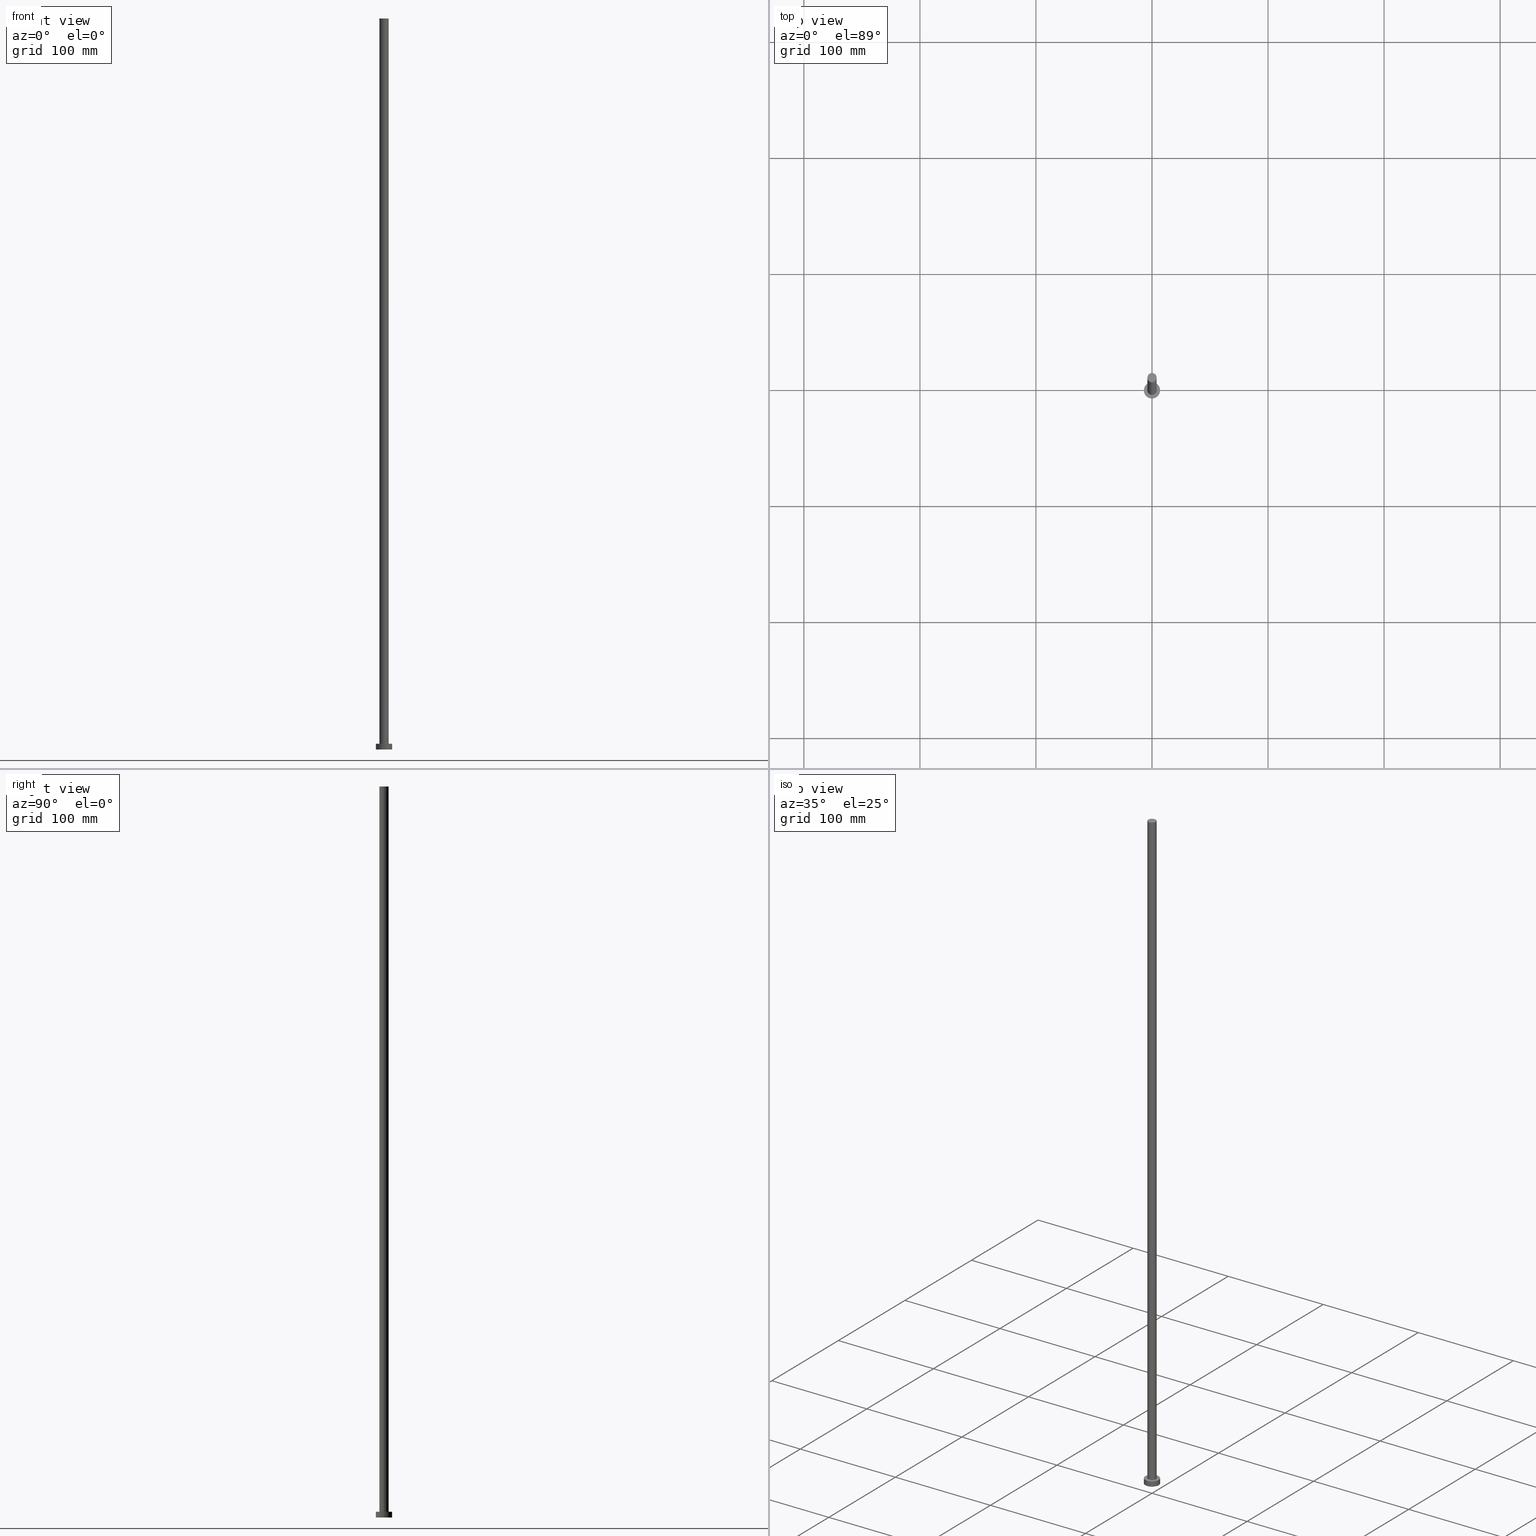
[diagram: canonical four-view strip — front | top / right | iso, engineering-drawing reading convention]
A machine part, canonical four-view strip (front | top / right | iso — engineering-drawing reading convention). The complete STEP part file that produces these views, byte-faithful:
ISO-10303-21;
HEADER;
FILE_DESCRIPTION (( 'STEP AP203' ),
    '1' );
FILE_NAME ('16a7.STEP',
    '2023-02-12T11:47:52',
    ( '' ),
    ( '' ),
    'SwSTEP 2.0',
    'SolidWorks 2019',
    '' );
FILE_SCHEMA (( 'CONFIG_CONTROL_DESIGN' ));
ENDSEC;

DATA;
#1 = CLOSED_SHELL ( 'NONE', ( #3, #58, #99, #247, #163, #18, #140 ) ) ;
#2 = APPROVAL_STATUS ( 'not_yet_approved' ) ;
#3 = ADVANCED_FACE ( 'NONE', ( #30 ), #187, .T. ) ;
#4 = DIRECTION ( 'NONE',  ( 0.000000000000000000, 0.000000000000000000, 1.000000000000000000 ) ) ;
#5 = AXIS2_PLACEMENT_3D ( 'NONE', #164, #186, #157 ) ;
#6 = DATE_TIME_ROLE ( 'classification_date' ) ;
#7 = CARTESIAN_POINT ( 'NONE',  ( 0.000000000000000000, 0.000000000000000000, 5.000000000000000000 ) ) ;
#8 = PRODUCT_DEFINITION_FORMATION_WITH_SPECIFIED_SOURCE ( 'LIBOVOLN�', '', #114, .NOT_KNOWN. ) ;
#9 = CC_DESIGN_APPROVAL ( #73, ( #220 ) ) ;
#10 = CYLINDRICAL_SURFACE ( 'NONE', #227, 7.000000000000000000 ) ;
#11 = DIRECTION ( 'NONE',  ( 1.000000000000000000, 0.000000000000000000, 0.000000000000000000 ) ) ;
#12 = LINE ( 'NONE', #185, #13 ) ;
#13 = VECTOR ( 'NONE', #110, 1000.000000000000000 ) ;
#14 = LOCAL_TIME ( 12, 47, 52.00000000000000000, #80 ) ;
#15 = DIRECTION ( 'NONE',  ( 0.000000000000000000, 0.000000000000000000, 1.000000000000000000 ) ) ;
#16 = DIRECTION ( 'NONE',  ( 0.000000000000000000, 0.000000000000000000, 1.000000000000000000 ) ) ;
#17 = CIRCLE ( 'NONE', #217, 4.000000000000000000 ) ;
#18 = ADVANCED_FACE ( 'NONE', ( #135 ), #27, .T. ) ;
#19 = APPROVAL_ROLE ( '' ) ;
#20 = COORDINATED_UNIVERSAL_TIME_OFFSET ( 1, 0, .AHEAD. ) ;
#21 = EDGE_LOOP ( 'NONE', ( #204, #181, #241, #193 ) ) ;
#22 = CALENDAR_DATE ( 2023, 12, 2 ) ;
#23 =( NAMED_UNIT ( * ) PLANE_ANGLE_UNIT ( ) SI_UNIT ( $, .RADIAN. ) );
#24 = CALENDAR_DATE ( 2023, 12, 2 ) ;
#25 = ORIENTED_EDGE ( 'NONE', *, *, #34, .T. ) ;
#26 = PRODUCT_RELATED_PRODUCT_CATEGORY ( 'detail', '', ( #114 ) ) ;
#27 = CYLINDRICAL_SURFACE ( 'NONE', #5, 4.000000000000000000 ) ;
#28 = ORIENTED_EDGE ( 'NONE', *, *, #123, .F. ) ;
#29 = DIRECTION ( 'NONE',  ( -1.000000000000000000, 0.000000000000000000, 0.000000000000000000 ) ) ;
#30 = FACE_OUTER_BOUND ( 'NONE', #86, .T. ) ;
#31 = CARTESIAN_POINT ( 'NONE',  ( 0.000000000000000000, 0.000000000000000000, 630.0000000000000000 ) ) ;
#32 = AXIS2_PLACEMENT_3D ( 'NONE', #255, #236, #179 ) ;
#33 = CARTESIAN_POINT ( 'NONE',  ( 0.000000000000000000, 0.000000000000000000, 0.000000000000000000 ) ) ;
#34 = EDGE_CURVE ( 'NONE', #59, #67, #12, .T. ) ;
#35 = CARTESIAN_POINT ( 'NONE',  ( 0.000000000000000000, 0.000000000000000000, 630.0000000000000000 ) ) ;
#36 = LINE ( 'NONE', #120, #112 ) ;
#37 = PRODUCT_DEFINITION_SHAPE ( 'NONE', 'NONE',  #220 ) ;
#38 = CC_DESIGN_DATE_AND_TIME_ASSIGNMENT ( #68, #6, ( #96 ) ) ;
#39 = PERSON_AND_ORGANIZATION_ROLE ( 'creator' ) ;
#40 = ORIENTED_EDGE ( 'NONE', *, *, #46, .F. ) ;
#41 = MANIFOLD_SOLID_BREP ( 'P�idat vysunut�m3', #1 ) ;
#42 = PLANE ( 'NONE',  #192 ) ;
#43 = VECTOR ( 'NONE', #113, 1000.000000000000000 ) ;
#44 = PERSON ( 'NEUR�EN�', 'NEUR�EN�', 'NEUR�EN�', ('NEUR�EN�'), ('NEUR�EN�'), ('NEUR�EN�') ) ;
#45 = PERSON_AND_ORGANIZATION_ROLE ( 'design_owner' ) ;
#46 = EDGE_CURVE ( 'NONE', #219, #74, #61, .T. ) ;
#47 = CARTESIAN_POINT ( 'NONE',  ( 4.000000000000000000, 4.898587196589412829E-16, 630.0000000000000000 ) ) ;
#48 = ORIENTED_EDGE ( 'NONE', *, *, #119, .T. ) ;
#49 = EDGE_CURVE ( 'NONE', #177, #219, #237, .T. ) ;
#50 = MECHANICAL_CONTEXT ( 'NONE', #188, 'mechanical' ) ;
#51 = ORIENTED_EDGE ( 'NONE', *, *, #212, .T. ) ;
#52 = DIRECTION ( 'NONE',  ( -0.000000000000000000, -0.000000000000000000, -1.000000000000000000 ) ) ;
#53 = CARTESIAN_POINT ( 'NONE',  ( 0.000000000000000000, 0.000000000000000000, 5.000000000000000000 ) ) ;
#54 = DATE_AND_TIME ( #205, #121 ) ;
#55 = DIRECTION ( 'NONE',  ( -1.000000000000000000, 0.000000000000000000, 0.000000000000000000 ) ) ;
#56 = CARTESIAN_POINT ( 'NONE',  ( -7.000000000000000000, 0.000000000000000000, 0.000000000000000000 ) ) ;
#57 = ORGANIZATION ( 'NEUR�EN�', 'NEUR�EN�', '' ) ;
#58 = ADVANCED_FACE ( 'NONE', ( #153 ), #10, .T. ) ;
#59 = VERTEX_POINT ( 'NONE', #131 ) ;
#60 = EDGE_CURVE ( 'NONE', #177, #223, #105, .T. ) ;
#61 = CIRCLE ( 'NONE', #190, 4.000000000000000000 ) ;
#62 = AXIS2_PLACEMENT_3D ( 'NONE', #232, #180, #251 ) ;
#63 = PERSON_AND_ORGANIZATION ( #44, #57 ) ;
#64 = EDGE_LOOP ( 'NONE', ( #229, #101 ) ) ;
#65 = CC_DESIGN_DATE_AND_TIME_ASSIGNMENT ( #249, #159, ( #220 ) ) ;
#66 =( NAMED_UNIT ( * ) SI_UNIT ( $, .STERADIAN. ) SOLID_ANGLE_UNIT ( ) );
#67 = VERTEX_POINT ( 'NONE', #155 ) ;
#68 = DATE_AND_TIME ( #225, #152 ) ;
#69 = CARTESIAN_POINT ( 'NONE',  ( -4.000000000000000000, 0.000000000000000000, 630.0000000000000000 ) ) ;
#70 = ORIENTED_EDGE ( 'NONE', *, *, #123, .T. ) ;
#71 = CARTESIAN_POINT ( 'NONE',  ( 0.000000000000000000, 0.000000000000000000, 630.0000000000000000 ) ) ;
#72 = LINE ( 'NONE', #156, #172 ) ;
#73 = APPROVAL ( #2, 'NEUR�EN�' ) ;
#74 = VERTEX_POINT ( 'NONE', #92 ) ;
#75 = CC_DESIGN_PERSON_AND_ORGANIZATION_ASSIGNMENT ( #254, #218, ( #220 ) ) ;
#76 = FACE_OUTER_BOUND ( 'NONE', #64, .T. ) ;
#77 = CARTESIAN_POINT ( 'NONE',  ( -4.000000000000000000, 0.000000000000000000, 630.0000000000000000 ) ) ;
#78 = FACE_BOUND ( 'NONE', #137, .T. ) ;
#79 = AXIS2_PLACEMENT_3D ( 'NONE', #184, #201, #132 ) ;
#80 = COORDINATED_UNIVERSAL_TIME_OFFSET ( 1, 0, .AHEAD. ) ;
#81 = CALENDAR_DATE ( 2023, 12, 2 ) ;
#82 = DATE_AND_TIME ( #22, #84 ) ;
#83 = DATE_AND_TIME ( #24, #102 ) ;
#84 = LOCAL_TIME ( 12, 47, 52.00000000000000000, #175 ) ;
#85 = CC_DESIGN_PERSON_AND_ORGANIZATION_ASSIGNMENT ( #183, #109, ( #96 ) ) ;
#86 = EDGE_LOOP ( 'NONE', ( #162, #94, #161, #198 ) ) ;
#87 = PERSON_AND_ORGANIZATION ( #44, #57 ) ;
#88 = DIRECTION ( 'NONE',  ( -0.000000000000000000, -0.000000000000000000, -1.000000000000000000 ) ) ;
#89 = APPROVAL_ROLE ( '' ) ;
#90 = DIRECTION ( 'NONE',  ( 0.000000000000000000, 0.000000000000000000, 1.000000000000000000 ) ) ;
#91 = APPROVAL_PERSON_ORGANIZATION ( #126, #133, #182 ) ;
#92 = CARTESIAN_POINT ( 'NONE',  ( 4.000000000000000000, 4.898587196589412829E-16, 5.000000000000000000 ) ) ;
#93 = APPROVAL_DATE_TIME ( #54, #197 ) ;
#94 = ORIENTED_EDGE ( 'NONE', *, *, #178, .T. ) ;
#95 = CARTESIAN_POINT ( 'NONE',  ( 0.000000000000000000, 0.000000000000000000, 5.000000000000000000 ) ) ;
#96 = SECURITY_CLASSIFICATION ( '', '', #166 ) ;
#97 = DIRECTION ( 'NONE',  ( 0.000000000000000000, 0.000000000000000000, 1.000000000000000000 ) ) ;
#98 = DIRECTION ( 'NONE',  ( 1.000000000000000000, 0.000000000000000000, -0.000000000000000000 ) ) ;
#99 = ADVANCED_FACE ( 'NONE', ( #168 ), #240, .T. ) ;
#100 = PERSON_AND_ORGANIZATION ( #44, #57 ) ;
#101 = ORIENTED_EDGE ( 'NONE', *, *, #111, .F. ) ;
#102 = LOCAL_TIME ( 12, 47, 52.00000000000000000, #20 ) ;
#103 = APPLICATION_PROTOCOL_DEFINITION ( 'international standard', 'config_control_design', 1994, #188 ) ;
#104 = PERSON_AND_ORGANIZATION ( #44, #57 ) ;
#105 = CIRCLE ( 'NONE', #79, 4.000000000000000000 ) ;
#106 = COORDINATED_UNIVERSAL_TIME_OFFSET ( 1, 0, .AHEAD. ) ;
#107 = EDGE_LOOP ( 'NONE', ( #28, #25, #124, #108 ) ) ;
#108 = ORIENTED_EDGE ( 'NONE', *, *, #115, .F. ) ;
#109 = PERSON_AND_ORGANIZATION_ROLE ( 'classification_officer' ) ;
#110 = DIRECTION ( 'NONE',  ( -0.000000000000000000, -0.000000000000000000, -1.000000000000000000 ) ) ;
#111 = EDGE_CURVE ( 'NONE', #67, #117, #211, .T. ) ;
#112 = VECTOR ( 'NONE', #191, 1000.000000000000000 ) ;
#113 = DIRECTION ( 'NONE',  ( -0.000000000000000000, -0.000000000000000000, -1.000000000000000000 ) ) ;
#114 = PRODUCT ( '16a7', '16a7', '', ( #50 ) ) ;
#115 = EDGE_CURVE ( 'NONE', #158, #117, #72, .T. ) ;
#116 = DIRECTION ( 'NONE',  ( 0.000000000000000000, 0.000000000000000000, 1.000000000000000000 ) ) ;
#117 = VERTEX_POINT ( 'NONE', #56 ) ;
#118 = AXIS2_PLACEMENT_3D ( 'NONE', #31, #16, #122 ) ;
#119 = EDGE_CURVE ( 'NONE', #158, #59, #250, .T. ) ;
#120 = CARTESIAN_POINT ( 'NONE',  ( 4.000000000000000000, 4.898587196589412829E-16, 630.0000000000000000 ) ) ;
#121 = LOCAL_TIME ( 12, 47, 52.00000000000000000, #129 ) ;
#122 = DIRECTION ( 'NONE',  ( 1.000000000000000000, 0.000000000000000000, -0.000000000000000000 ) ) ;
#123 = EDGE_CURVE ( 'NONE', #59, #158, #235, .T. ) ;
#124 = ORIENTED_EDGE ( 'NONE', *, *, #111, .T. ) ;
#125 = CIRCLE ( 'NONE', #244, 4.000000000000000000 ) ;
#126 = PERSON_AND_ORGANIZATION ( #44, #57 ) ;
#127 = ORIENTED_EDGE ( 'NONE', *, *, #34, .F. ) ;
#128 = AXIS2_PLACEMENT_3D ( 'NONE', #71, #169, #150 ) ;
#129 = COORDINATED_UNIVERSAL_TIME_OFFSET ( 1, 0, .AHEAD. ) ;
#130 = EDGE_CURVE ( 'NONE', #74, #219, #17, .T. ) ;
#131 = CARTESIAN_POINT ( 'NONE',  ( 7.000000000000000000, 8.572527594031473190E-16, 5.000000000000000000 ) ) ;
#132 = DIRECTION ( 'NONE',  ( 1.000000000000000000, 0.000000000000000000, 0.000000000000000000 ) ) ;
#133 = APPROVAL ( #196, 'NEUR�EN�' ) ;
#134 = APPROVAL_PERSON_ORGANIZATION ( #87, #197, #89 ) ;
#135 = FACE_OUTER_BOUND ( 'NONE', #21, .T. ) ;
#136 = CC_DESIGN_PERSON_AND_ORGANIZATION_ASSIGNMENT ( #100, #176, ( #8 ) ) ;
#137 = EDGE_LOOP ( 'NONE', ( #40, #214 ) ) ;
#138 = CC_DESIGN_APPROVAL ( #197, ( #96 ) ) ;
#139 = PLANE ( 'NONE',  #118 ) ;
#140 = ADVANCED_FACE ( 'NONE', ( #208 ), #139, .T. ) ;
#141 = UNCERTAINTY_MEASURE_WITH_UNIT (LENGTH_MEASURE( 1.000000000000000082E-05 ), #215, 'distance_accuracy_value', 'NONE');
#142 = AXIS2_PLACEMENT_3D ( 'NONE', #238, #4, #165 ) ;
#143 = DIRECTION ( 'NONE',  ( 1.000000000000000000, 0.000000000000000000, 0.000000000000000000 ) ) ;
#144 = DIRECTION ( 'NONE',  ( 0.000000000000000000, 0.000000000000000000, 1.000000000000000000 ) ) ;
#145 = ORIENTED_EDGE ( 'NONE', *, *, #119, .F. ) ;
#146 = PERSON_AND_ORGANIZATION ( #44, #57 ) ;
#147 = CARTESIAN_POINT ( 'NONE',  ( -4.000000000000000000, 0.000000000000000000, 5.000000000000000000 ) ) ;
#148 = ORIENTED_EDGE ( 'NONE', *, *, #115, .T. ) ;
#149 = ORIENTED_EDGE ( 'NONE', *, *, #60, .T. ) ;
#150 = DIRECTION ( 'NONE',  ( -1.000000000000000000, 0.000000000000000000, 0.000000000000000000 ) ) ;
#151 = AXIS2_PLACEMENT_3D ( 'NONE', #206, #116, #11 ) ;
#152 = LOCAL_TIME ( 12, 47, 52.00000000000000000, #106 ) ;
#153 = FACE_OUTER_BOUND ( 'NONE', #107, .T. ) ;
#154 = ADVANCED_BREP_SHAPE_REPRESENTATION ( '16a7', ( #41, #32 ), #239 ) ;
#155 = CARTESIAN_POINT ( 'NONE',  ( 7.000000000000000000, 8.572527594031473190E-16, 0.000000000000000000 ) ) ;
#156 = CARTESIAN_POINT ( 'NONE',  ( -7.000000000000000000, 0.000000000000000000, 5.000000000000000000 ) ) ;
#157 = DIRECTION ( 'NONE',  ( -1.000000000000000000, 0.000000000000000000, 0.000000000000000000 ) ) ;
#158 = VERTEX_POINT ( 'NONE', #245 ) ;
#159 = DATE_TIME_ROLE ( 'creation_date' ) ;
#160 = CARTESIAN_POINT ( 'NONE',  ( 0.000000000000000000, 0.000000000000000000, 5.000000000000000000 ) ) ;
#161 = ORIENTED_EDGE ( 'NONE', *, *, #130, .T. ) ;
#162 = ORIENTED_EDGE ( 'NONE', *, *, #174, .F. ) ;
#163 = ADVANCED_FACE ( 'NONE', ( #76 ), #173, .F. ) ;
#164 = CARTESIAN_POINT ( 'NONE',  ( 0.000000000000000000, 0.000000000000000000, 630.0000000000000000 ) ) ;
#165 = DIRECTION ( 'NONE',  ( 1.000000000000000000, 0.000000000000000000, 0.000000000000000000 ) ) ;
#166 = SECURITY_CLASSIFICATION_LEVEL ( 'unclassified' ) ;
#167 = CC_DESIGN_SECURITY_CLASSIFICATION ( #96, ( #8 ) ) ;
#168 = FACE_OUTER_BOUND ( 'NONE', #202, .T. ) ;
#169 = DIRECTION ( 'NONE',  ( -0.000000000000000000, -0.000000000000000000, -1.000000000000000000 ) ) ;
#170 = DIRECTION ( 'NONE',  ( 1.000000000000000000, 0.000000000000000000, 0.000000000000000000 ) ) ;
#171 = CC_DESIGN_PERSON_AND_ORGANIZATION_ASSIGNMENT ( #146, #45, ( #114 ) ) ;
#172 = VECTOR ( 'NONE', #226, 1000.000000000000000 ) ;
#173 = PLANE ( 'NONE',  #252 ) ;
#174 = EDGE_CURVE ( 'NONE', #223, #177, #125, .T. ) ;
#175 = COORDINATED_UNIVERSAL_TIME_OFFSET ( 1, 0, .AHEAD. ) ;
#176 = PERSON_AND_ORGANIZATION_ROLE ( 'design_supplier' ) ;
#177 = VERTEX_POINT ( 'NONE', #77 ) ;
#178 = EDGE_CURVE ( 'NONE', #223, #74, #36, .T. ) ;
#179 = DIRECTION ( 'NONE',  ( 1.000000000000000000, 0.000000000000000000, 0.000000000000000000 ) ) ;
#180 = DIRECTION ( 'NONE',  ( 0.000000000000000000, 0.000000000000000000, 1.000000000000000000 ) ) ;
#181 = ORIENTED_EDGE ( 'NONE', *, *, #60, .F. ) ;
#182 = APPROVAL_ROLE ( '' ) ;
#183 = PERSON_AND_ORGANIZATION ( #44, #57 ) ;
#184 = CARTESIAN_POINT ( 'NONE',  ( 0.000000000000000000, 0.000000000000000000, 630.0000000000000000 ) ) ;
#185 = CARTESIAN_POINT ( 'NONE',  ( 7.000000000000000000, 8.572527594031473190E-16, 5.000000000000000000 ) ) ;
#186 = DIRECTION ( 'NONE',  ( -0.000000000000000000, -0.000000000000000000, -1.000000000000000000 ) ) ;
#187 = CYLINDRICAL_SURFACE ( 'NONE', #128, 4.000000000000000000 ) ;
#188 = APPLICATION_CONTEXT ( 'configuration controlled 3d designs of mechanical parts and assemblies' ) ;
#189 = DIRECTION ( 'NONE',  ( 0.000000000000000000, 0.000000000000000000, 1.000000000000000000 ) ) ;
#190 = AXIS2_PLACEMENT_3D ( 'NONE', #7, #90, #170 ) ;
#191 = DIRECTION ( 'NONE',  ( -0.000000000000000000, -0.000000000000000000, -1.000000000000000000 ) ) ;
#192 = AXIS2_PLACEMENT_3D ( 'NONE', #160, #144, #98 ) ;
#193 = ORIENTED_EDGE ( 'NONE', *, *, #46, .T. ) ;
#194 = APPLICATION_PROTOCOL_DEFINITION ( 'international standard', 'config_control_design', 1994, #203 ) ;
#195 = DESIGN_CONTEXT ( 'detailed design', #203, 'design' ) ;
#196 = APPROVAL_STATUS ( 'not_yet_approved' ) ;
#197 = APPROVAL ( #221, 'NEUR�EN�' ) ;
#198 = ORIENTED_EDGE ( 'NONE', *, *, #49, .F. ) ;
#199 = APPROVAL_PERSON_ORGANIZATION ( #104, #73, #19 ) ;
#200 = SHAPE_DEFINITION_REPRESENTATION ( #37, #154 ) ;
#201 = DIRECTION ( 'NONE',  ( 0.000000000000000000, 0.000000000000000000, 1.000000000000000000 ) ) ;
#202 = EDGE_LOOP ( 'NONE', ( #127, #145, #148, #51 ) ) ;
#203 = APPLICATION_CONTEXT ( 'configuration controlled 3d designs of mechanical parts and assemblies' ) ;
#204 = ORIENTED_EDGE ( 'NONE', *, *, #178, .F. ) ;
#205 = CALENDAR_DATE ( 2023, 12, 2 ) ;
#206 = CARTESIAN_POINT ( 'NONE',  ( 0.000000000000000000, 0.000000000000000000, 5.000000000000000000 ) ) ;
#207 = ORIENTED_EDGE ( 'NONE', *, *, #174, .T. ) ;
#208 = FACE_OUTER_BOUND ( 'NONE', #253, .T. ) ;
#209 = DIRECTION ( 'NONE',  ( 1.000000000000000000, 0.000000000000000000, -0.000000000000000000 ) ) ;
#210 = DIRECTION ( 'NONE',  ( 1.000000000000000000, 0.000000000000000000, 0.000000000000000000 ) ) ;
#211 = CIRCLE ( 'NONE', #142, 7.000000000000000000 ) ;
#212 = EDGE_CURVE ( 'NONE', #117, #67, #246, .T. ) ;
#213 = AXIS2_PLACEMENT_3D ( 'NONE', #242, #97, #143 ) ;
#214 = ORIENTED_EDGE ( 'NONE', *, *, #130, .F. ) ;
#215 =( LENGTH_UNIT ( ) NAMED_UNIT ( * ) SI_UNIT ( .MILLI., .METRE. ) );
#216 = APPROVAL_DATE_TIME ( #82, #73 ) ;
#217 = AXIS2_PLACEMENT_3D ( 'NONE', #95, #189, #231 ) ;
#218 = PERSON_AND_ORGANIZATION_ROLE ( 'creator' ) ;
#219 = VERTEX_POINT ( 'NONE', #147 ) ;
#220 = PRODUCT_DEFINITION ( 'NEZN�M�', '', #8, #195 ) ;
#221 = APPROVAL_STATUS ( 'not_yet_approved' ) ;
#222 = EDGE_LOOP ( 'NONE', ( #48, #70 ) ) ;
#223 = VERTEX_POINT ( 'NONE', #47 ) ;
#224 = CARTESIAN_POINT ( 'NONE',  ( 0.000000000000000000, 0.000000000000000000, 5.000000000000000000 ) ) ;
#225 = CALENDAR_DATE ( 2023, 12, 2 ) ;
#226 = DIRECTION ( 'NONE',  ( -0.000000000000000000, -0.000000000000000000, -1.000000000000000000 ) ) ;
#227 = AXIS2_PLACEMENT_3D ( 'NONE', #53, #52, #29 ) ;
#228 = CC_DESIGN_APPROVAL ( #133, ( #8 ) ) ;
#229 = ORIENTED_EDGE ( 'NONE', *, *, #212, .F. ) ;
#230 = CC_DESIGN_PERSON_AND_ORGANIZATION_ASSIGNMENT ( #63, #39, ( #8 ) ) ;
#231 = DIRECTION ( 'NONE',  ( 1.000000000000000000, 0.000000000000000000, 0.000000000000000000 ) ) ;
#232 = CARTESIAN_POINT ( 'NONE',  ( 0.000000000000000000, 0.000000000000000000, 0.000000000000000000 ) ) ;
#233 = APPROVAL_DATE_TIME ( #83, #133 ) ;
#234 = FACE_OUTER_BOUND ( 'NONE', #222, .T. ) ;
#235 = CIRCLE ( 'NONE', #213, 7.000000000000000000 ) ;
#236 = DIRECTION ( 'NONE',  ( 0.000000000000000000, 0.000000000000000000, 1.000000000000000000 ) ) ;
#237 = LINE ( 'NONE', #69, #43 ) ;
#238 = CARTESIAN_POINT ( 'NONE',  ( 0.000000000000000000, 0.000000000000000000, 0.000000000000000000 ) ) ;
#239 =( GEOMETRIC_REPRESENTATION_CONTEXT ( 3 ) GLOBAL_UNCERTAINTY_ASSIGNED_CONTEXT ( ( #141 ) ) GLOBAL_UNIT_ASSIGNED_CONTEXT ( ( #215, #23, #66 ) ) REPRESENTATION_CONTEXT ( 'NONE', 'WORKASPACE' ) );
#240 = CYLINDRICAL_SURFACE ( 'NONE', #243, 7.000000000000000000 ) ;
#241 = ORIENTED_EDGE ( 'NONE', *, *, #49, .T. ) ;
#242 = CARTESIAN_POINT ( 'NONE',  ( 0.000000000000000000, 0.000000000000000000, 5.000000000000000000 ) ) ;
#243 = AXIS2_PLACEMENT_3D ( 'NONE', #224, #88, #55 ) ;
#244 = AXIS2_PLACEMENT_3D ( 'NONE', #35, #248, #210 ) ;
#245 = CARTESIAN_POINT ( 'NONE',  ( -7.000000000000000000, 0.000000000000000000, 5.000000000000000000 ) ) ;
#246 = CIRCLE ( 'NONE', #62, 7.000000000000000000 ) ;
#247 = ADVANCED_FACE ( 'NONE', ( #78, #234 ), #42, .T. ) ;
#248 = DIRECTION ( 'NONE',  ( 0.000000000000000000, 0.000000000000000000, 1.000000000000000000 ) ) ;
#249 = DATE_AND_TIME ( #81, #14 ) ;
#250 = CIRCLE ( 'NONE', #151, 7.000000000000000000 ) ;
#251 = DIRECTION ( 'NONE',  ( 1.000000000000000000, 0.000000000000000000, 0.000000000000000000 ) ) ;
#252 = AXIS2_PLACEMENT_3D ( 'NONE', #33, #15, #209 ) ;
#253 = EDGE_LOOP ( 'NONE', ( #149, #207 ) ) ;
#254 = PERSON_AND_ORGANIZATION ( #44, #57 ) ;
#255 = CARTESIAN_POINT ( 'NONE',  ( 0.000000000000000000, 0.000000000000000000, 0.000000000000000000 ) ) ;
ENDSEC;
END-ISO-10303-21;
